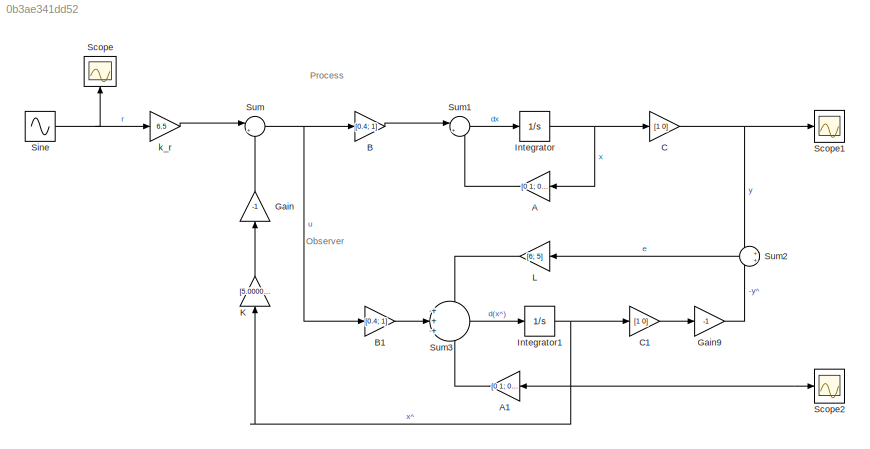
MODEL slx_0b3ae341dd52
KIND model
CONFIG AbsTol = auto
CONFIG EnableMultiTasking = off
CONFIG FixedStep = auto
CONFIG MaxStep = auto
CONFIG MinStep = auto
CONFIG RelTol = 1e-3
CONFIG SampleTimeConstraint = Unconstrained
CONFIG SolverName = VariableStepAuto
CONFIG StartTime = 0.0
CONFIG StopTime = 1000.0
BLOCK [Gain] A
  Gain = [0 1; 0 0]
  Multiplication = Matrix(K*u)
BLOCK [Gain] A1
  Gain = [0 1; 0 0]
  Multiplication = Matrix(K*u)
BLOCK [Gain] B
  Gain = [0.4; 1]
  Multiplication = Matrix(K*u)
BLOCK [Gain] B1
  Gain = [0.4; 1]
  Multiplication = Matrix(K*u)
BLOCK [Gain] C
  Gain = [1 0]
  Multiplication = Matrix(K*u)
BLOCK [Gain] C1
  Gain = [1 0]
  Multiplication = Matrix(K*u)
BLOCK [Gain] Gain
  Gain = -1
  NameLocation = right
BLOCK [Gain] Gain9
  Gain = -1
BLOCK [Integrator] Integrator
  Ports = [1, 1]
BLOCK [Integrator] Integrator1
  Ports = [1, 1]
BLOCK [Gain] K
  Gain = [5.0000 4]
  Multiplication = Matrix(K*u)
  NameLocation = left
BLOCK [Gain] L
  Gain = [6; 5]
  Multiplication = Matrix(K*u)
BLOCK [Scope] Scope
  Floating = off
  NameLocation = right
  NumInputPorts = 1
  Ports = [1]
  ScopeSpecificationString = Simulink.scopes.TimeScopeBlockCfg('CurrentConfiguration', extmgr.ConfigurationSet(extmgr.Configuration('Core','General UI',true),extmgr.Configuration('Core','Source UI',true),extmgr.Configuration('Sources','WiredSimulink',true),extmgr.Configuration('Visuals','Time Domain',true,'SerializedDisplays',{struct('MinYLimReal','-0.62429','MaxYLimReal','0.62492','YLabelReal','','MinYLimMag','0.00000','MaxY...<+1351ch>
BLOCK [Scope] Scope1
  Floating = off
  NumInputPorts = 1
  Ports = [1]
  ScopeSpecificationString = Simulink.scopes.TimeScopeBlockCfg('CurrentConfiguration', extmgr.ConfigurationSet(extmgr.Configuration('Core','General UI',true),extmgr.Configuration('Core','Source UI',true),extmgr.Configuration('Sources','WiredSimulink',true,'DataLoggingVariableName','ScopeData1'),extmgr.Configuration('Visuals','Time Domain',true,'SerializedDisplays',{struct('MinYLimReal','-0.09386','MaxYLimReal','0.09821','YLab...<+1360ch>
BLOCK [Scope] Scope2
  Floating = off
  NumInputPorts = 1
  Ports = [1]
  ScopeSpecificationString = Simulink.scopes.TimeScopeBlockCfg('CurrentConfiguration', extmgr.ConfigurationSet(extmgr.Configuration('Core','General UI',true),extmgr.Configuration('Core','Source UI',true),extmgr.Configuration('Sources','WiredSimulink',true,'DataLoggingVariableName','ScopeData2'),extmgr.Configuration('Visuals','Time Domain',true,'SerializedDisplays',{struct('MinYLimReal','-1.22016','MaxYLimReal','1.27671','YLab...<+1395ch>
BLOCK [Sin] Sine
  Ports = [0, 1]
  SampleTime = 0
BLOCK [Sum] Sum
  Inputs = |++
  Ports = [2, 1]
BLOCK [Sum] Sum1
  Inputs = |++
  Ports = [2, 1]
BLOCK [Sum] Sum2
  NameLocation = top
  Ports = [2, 1]
BLOCK [Sum] Sum3
  Inputs = +++
  Ports = [3, 1]
BLOCK [Gain] k_r
  Gain = 6.5
ANNOTATION (root): Observer
ANNOTATION (root): Process
LINE A1:1 -> Sum3:3
LINE A:1 -> Sum1:2
LINE B1:1 -> Sum3:2
LINE B:1 -> Sum1:1
LINE C1:1 -> Gain9:1
NET C:1 -> Scope1:1, Sum2:1
LINE Gain9:1 -> Sum2:2
LINE Gain:1 -> Sum:2
NET Integrator1:1 -> A1:1, C1:1, K:1, Scope2:1
NET Integrator:1 -> A:1, C:1
LINE K:1 -> Gain:1
LINE L:1 -> Sum3:1
NET Sine:1 -> Scope:1, k_r:1
LINE Sum1:1 -> Integrator:1
LINE Sum2:1 -> L:1
LINE Sum3:1 -> Integrator1:1
NET Sum:1 -> B1:1, B:1
LINE k_r:1 -> Sum:1
note: NET lines group one-source signal fan-out (src -> all destinations, sorted); 1:1 wires keep LINE
